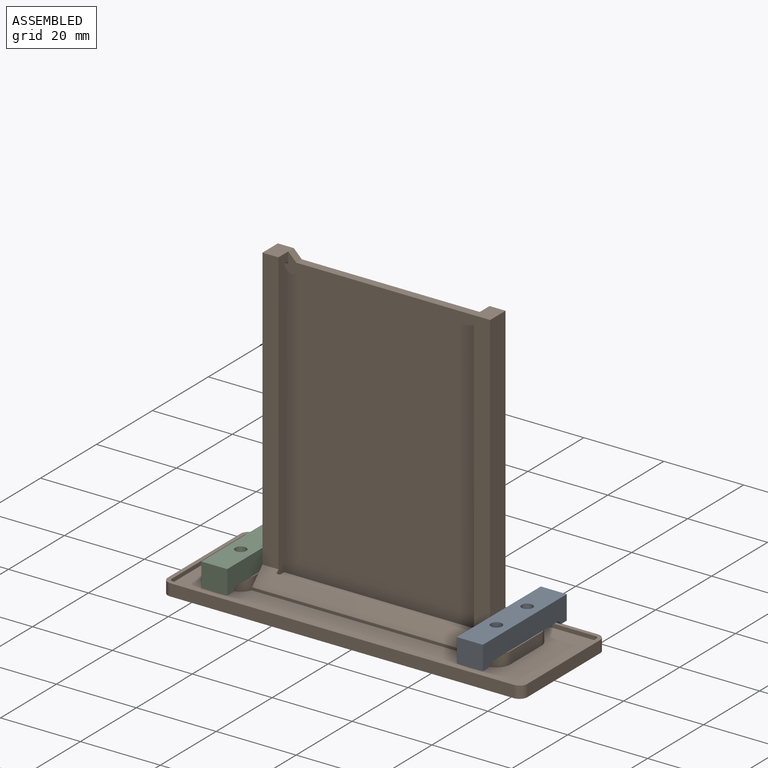
[diagram: assembled view]
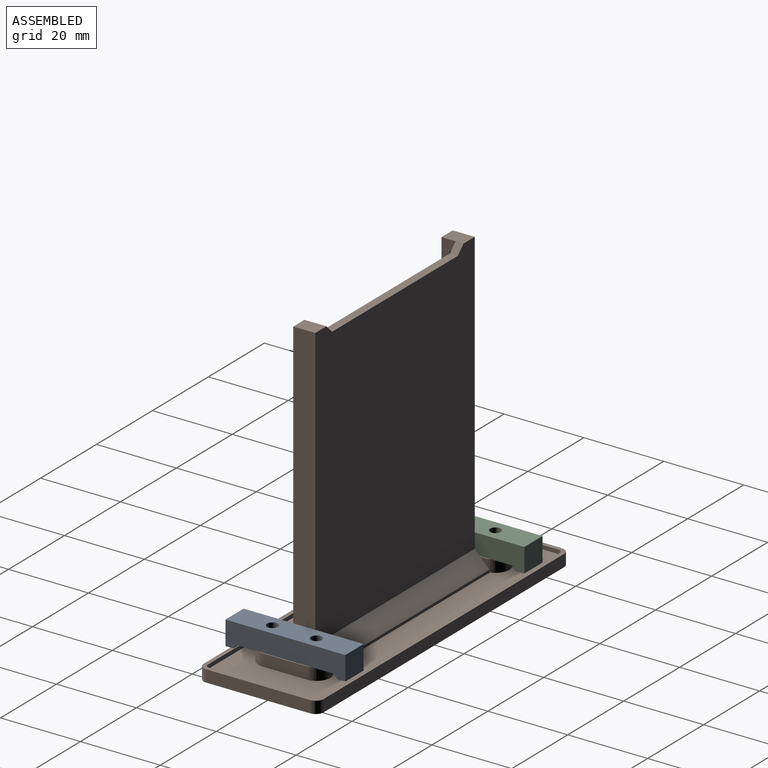
[diagram: assembled view, second angle]
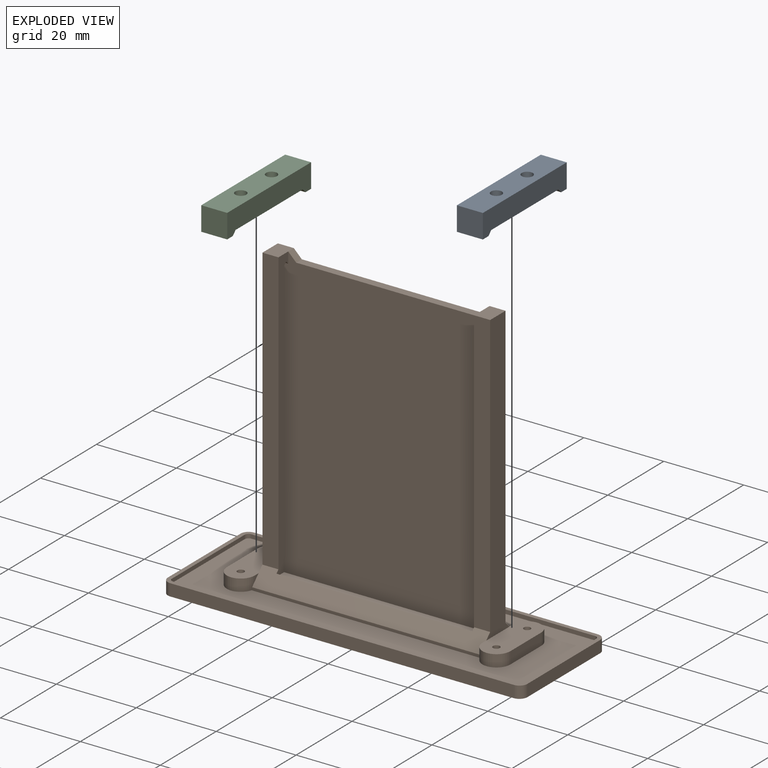
[diagram: exploded view]
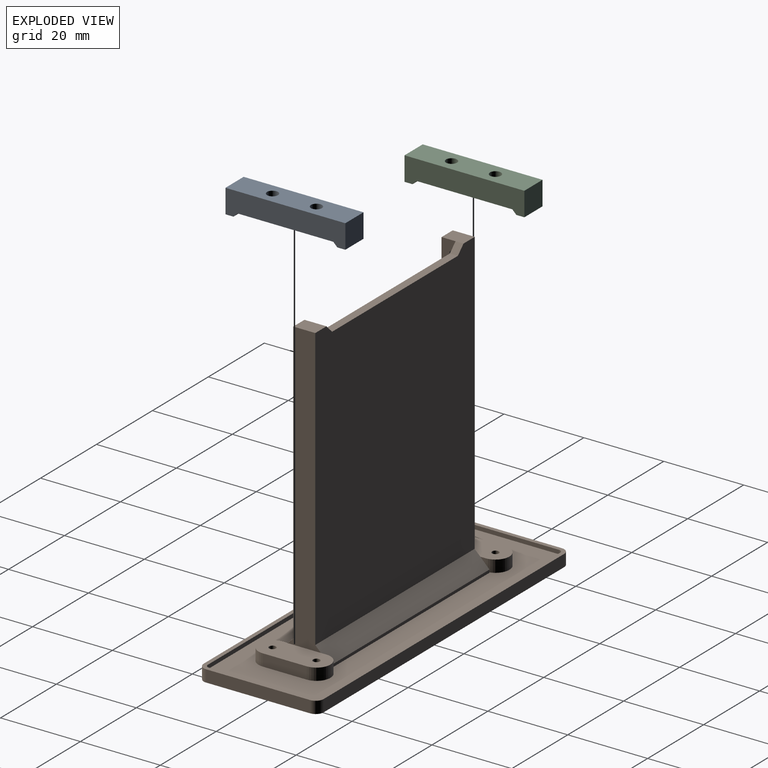
[diagram: exploded view, second angle]
ASSEMBLY  parts=3 mates=2
PART A: 12 faces, bbox 6.5x30x6 mm
  f0: plane 6.5x6mm, normal (0,1,0), area 39mm2, adj f1,f5,f7,f8
  f1: plane 30x6mm, normal (-1,0,0), area 155mm2, adj f0,f2,f6,f7,f8,f9,f10,f11
  f2: plane 6.5x6mm, normal (0,-1,0), area 39mm2, adj f1,f5,f7,f9
  f3: cylinder r=1.38mm len=5mm, axis (0,0,-1), area 43.2mm2, adj f6,f7
  f4: cylinder r=1.38mm len=5mm, axis (0,0,-1), area 43.2mm2, adj f6,f7
  f5: plane 30x6mm, normal (1,0,0), area 155mm2, adj f0,f2,f6,f7,f8,f9,f10,f11
  f6: plane 24x6.5mm, normal (0,0,1), area 144.1mm2, adj f1,f3,f4,f5,f10,f11
  f7: plane 30x6.5mm, normal (0,0,-1), area 183.1mm2, adj f0,f1,f2,f3,f4,f5
  f8: plane 6.5x2mm, normal (0,0,1), area 13mm2, adj f0,f1,f5,f11
  f9: plane 6.5x2mm, normal (0,0,1), area 13mm2, adj f1,f2,f5,f10
  f10: plane 6.5x1mm, normal (0,0.71,0.71), area 9.2mm2, adj f1,f5,f6,f9
  f11: plane 6.5x1mm, normal (0,-0.71,0.71), area 9.2mm2, adj f1,f5,f6,f8
PART B: 73 faces, bbox 90x30x77 mm
  f0: plane 45x2mm, normal (0,0,1), area 90mm2, adj f3,f5,f59,f60
  f1: plane 70.59x4mm, normal (0,-1,0), area 282.3mm2, adj f16,f23,f52,f58
  f2: plane 72x8.33mm, normal (-1,0,0), area 398mm2, adj f3,f20,f52,f53,f54,f57
  f3: plane 70.59x57mm, normal (0,1,0), area 3929.4mm2, adj f0,f2,f23,f54,f57,f58,f59,f60
  f4: plane 88x28mm, normal (0,0,1), area 1496.1mm2, adj f32,f33,f34,f35,f36,f37,f38,f39
  f5: plane 73x55mm, normal (0,-1,0), area 3904.5mm2, adj f0,f6,f7,f11,f16,f18,f59,f60
  f6: plane 71x1.5mm, normal (-1,0,0), area 105.9mm2, adj f5,f8,f12,f61,f62
  f7: plane 71x1.5mm, normal (1,0,0), area 105.9mm2, adj f5,f10,f12,f63,f64
  f8: plane 9.5x4mm, normal (-0.71,0,-0.71), area 31.1mm2, adj f6,f9,f11,f13
  f9: plane 63x4mm, normal (0,0.71,-0.71), area 333.8mm2, adj f8,f10,f12,f13
  f10: plane 9.5x4mm, normal (0.71,0,-0.71), area 31.1mm2, adj f7,f9,f11,f13
  f11: plane 63x4mm, normal (0,-0.71,-0.71), area 333.8mm2, adj f5,f8,f10,f13
  f12: plane 70.25x55mm, normal (0,1,0), area 470.5mm2, adj f6,f7,f9,f16,f17,f18,f62,f63
  f13: plane 90x30mm, normal (0,0,-1), area 2098.1mm2, adj f8,f9,f10,f11,f24,f25,f26,f27
  f14: plane 18x7mm, normal (0,0,1), area 110.9mm2, adj f15,f21,f23,f38,f39,f40,f69,f71
  f15: plane 1.34x1.34mm, normal (-1,0,0), area 0.9mm2, adj f14,f40,f52
  f16: plane 72x4.21mm, normal (-1,0,0), area 148.1mm2, adj f1,f5,f12,f17,f51,f52,f58,f61
  f17: plane 49x2mm, normal (0,0,1), area 98mm2, adj f12,f16,f18,f51
  f18: plane 72x4.21mm, normal (1,0,0), area 148.1mm2, adj f5,f12,f17,f51,f52,f53,f57,f63
  f19: plane 1.34x1.34mm, normal (1,0,0), area 0.9mm2, adj f20,f43,f52
  f20: plane 18x7mm, normal (0,0,1), area 110.9mm2, adj f2,f19,f22,f43,f44,f45,f65,f67
  f21: plane 1.34x1.34mm, normal (-1,0,0), area 0.9mm2, adj f14,f38,f54
  f22: plane 1.34x1.34mm, normal (1,0,0), area 0.9mm2, adj f20,f45,f54
  f23: plane 72x8.33mm, normal (1,0,0), area 398mm2, adj f1,f3,f14,f52,f54,f58
  f24: cylinder r=2mm len=3mm, axis (0,0,1), area 9.4mm2, adj f13,f25,f31,f48
  f25: plane 26x3mm, normal (-1,0,0), area 78mm2, adj f13,f24,f26,f48
  f26: cylinder r=2mm len=3mm, axis (0,0,1), area 9.4mm2, adj f13,f25,f27,f48
  f27: plane 86x3mm, normal (0,-1,0), area 258mm2, adj f13,f26,f28,f48
  f28: cylinder r=2mm len=3mm, axis (0,0,1), area 9.4mm2, adj f13,f27,f29,f48
  f29: plane 26x3mm, normal (1,0,0), area 78mm2, adj f13,f28,f30,f48
  f30: cylinder r=2mm len=3mm, axis (0,0,1), area 9.4mm2, adj f13,f29,f31,f48
  f31: plane 86x3mm, normal (0,1,0), area 258mm2, adj f13,f24,f30,f48
  f32: cylinder r=1mm len=1mm, axis (0,0,1), area 1.6mm2, adj f4,f33,f47,f48
  f33: plane 26x1mm, normal (-1,0,0), area 26mm2, adj f4,f32,f34,f48
  f34: cylinder r=1mm len=1mm, axis (0,0,1), area 1.6mm2, adj f4,f33,f35,f48
  f35: plane 86x1mm, normal (0,-1,0), area 86mm2, adj f4,f34,f36,f48
  f36: cylinder r=1mm len=1mm, axis (0,0,1), area 1.6mm2, adj f4,f35,f48,f49
  f37: plane 1.66x0.96mm, normal (1,0,0), area 1.1mm2, adj f4,f38,f54,f56
  f38: cylinder r=3.5mm len=7mm, axis (0,0,-1), area 33mm2, adj f4,f14,f21,f37,f39
  f39: plane 11x3mm, normal (1,0,0), area 33mm2, adj f4,f14,f38,f40
  f40: cylinder r=3.5mm len=7mm, axis (0,0,1), area 33mm2, adj f4,f14,f15,f39,f41
  f41: plane 1.66x0.96mm, normal (1,0,0), area 1.1mm2, adj f4,f40,f52,f55
  f42: plane 1.66x0.96mm, normal (-1,0,0), area 1.1mm2, adj f4,f43,f52,f55
  f43: cylinder r=3.5mm len=7mm, axis (0,0,-1), area 33mm2, adj f4,f19,f20,f42,f44
  f44: plane 11x3mm, normal (-1,0,0), area 33mm2, adj f4,f20,f43,f45
  f45: cylinder r=3.5mm len=7mm, axis (0,0,1), area 33mm2, adj f4,f20,f22,f44,f46
  f46: plane 1.66x0.96mm, normal (-1,0,0), area 1.1mm2, adj f4,f45,f54,f56
  f47: plane 86x1mm, normal (0,1,0), area 86mm2, adj f4,f32,f48,f50
  f48: plane 90x30mm, normal (0,0,1), area 233.4mm2, adj f24,f25,f26,f27,f28,f29,f30,f31
  f49: plane 26x1mm, normal (1,0,0), area 26mm2, adj f4,f36,f48,f50
  f50: cylinder r=1mm len=1mm, axis (0,0,1), area 1.6mm2, adj f4,f47,f48,f49
  f51: plane 49x0.71mm, normal (0,0.71,0.71), area 49mm2, adj f16,f17,f18,f52
  f52: plane 57x3.71mm, normal (0,-0.71,0.71), area 249.8mm2, adj f1,f2,f15,f16,f18,f19,f23,f41
  f53: plane 70.59x4mm, normal (0,-1,0), area 282.3mm2, adj f2,f18,f52,f57
  f54: plane 57x3.71mm, normal (0,0.71,0.71), area 298.8mm2, adj f2,f3,f21,f22,f23,f37,f46,f56
  f55: plane 57x0.71mm, normal (0,-1,0), area 40.3mm2, adj f4,f41,f42,f52
  f56: plane 57x0.71mm, normal (0,1,0), area 40.3mm2, adj f4,f37,f46,f54
  f57: plane 5.5x4mm, normal (0,0,1), area 22mm2, adj f2,f3,f18,f53,f60
  f58: plane 5.5x4mm, normal (0,0,1), area 22mm2, adj f1,f3,f16,f23,f59
  f59: plane 2x2mm, normal (-0.71,0,0.71), area 5.7mm2, adj f0,f3,f5,f58
  f60: plane 2x2mm, normal (0.71,0,0.71), area 5.7mm2, adj f0,f3,f5,f57
  f61: plane 3x0.75mm, normal (0,-0.71,-0.71), area 3.2mm2, adj f5,f6,f16,f62
  f62: plane 3x0.75mm, normal (0,0.71,-0.71), area 3.2mm2, adj f6,f12,f16,f61
  f63: plane 3x0.75mm, normal (0,0.71,-0.71), area 3.2mm2, adj f7,f12,f18,f64
  f64: plane 3x0.75mm, normal (0,-0.71,-0.71), area 3.2mm2, adj f5,f7,f18,f63
  f65: cylinder r=0.85mm len=3mm, axis (0,0,1), area 16mm2, adj f20,f66
  f66: plane 1.7x1.7mm, normal (0,0,1), area 2.3mm2, adj f65
  f67: cylinder r=0.85mm len=3mm, axis (0,0,1), area 16mm2, adj f20,f68
  f68: plane 1.7x1.7mm, normal (0,0,1), area 2.3mm2, adj f67
  f69: cylinder r=0.85mm len=3mm, axis (0,0,1), area 16mm2, adj f14,f70
  f70: plane 1.7x1.7mm, normal (0,0,1), area 2.3mm2, adj f69
  f71: cylinder r=0.85mm len=3mm, axis (0,0,1), area 16mm2, adj f14,f72
  f72: plane 1.7x1.7mm, normal (0,0,1), area 2.3mm2, adj f71
PART C: same geometry as A
PLACE A rot(axis=(1,0,0),180deg) t=(32,0,10)mm
PLACE B at identity
PLACE C rot(axis=(1,0,0),180deg) t=(-32,0,10)mm
MATE fastened C.f3 <-> B.f43  axis (0,0,1) through (-32,-5.5,5)mm
MATE fastened A.f3 <-> B.f40  axis (0,0,-1) through (32,-5.5,5)mm
